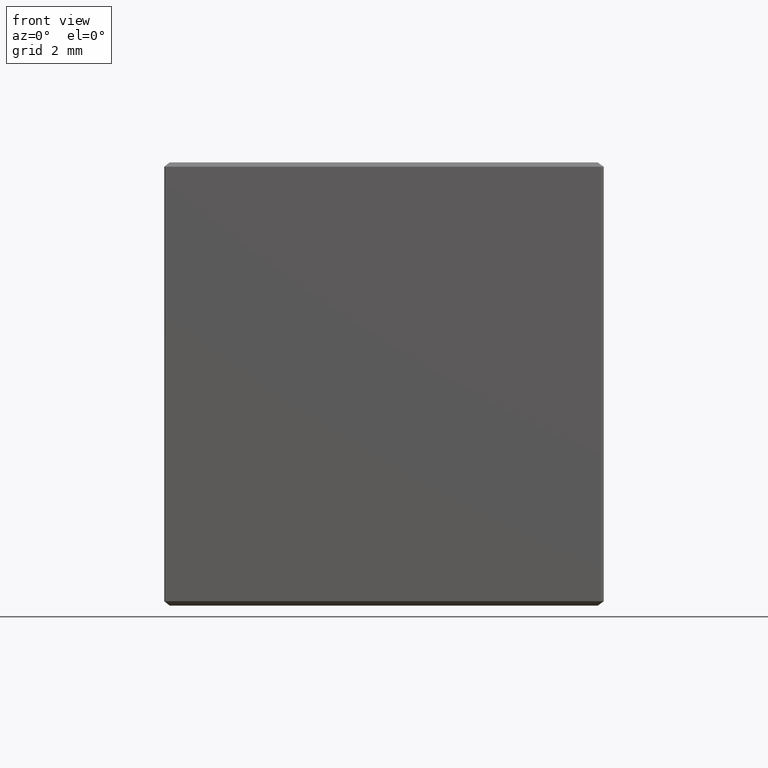
[diagram: clean part render]
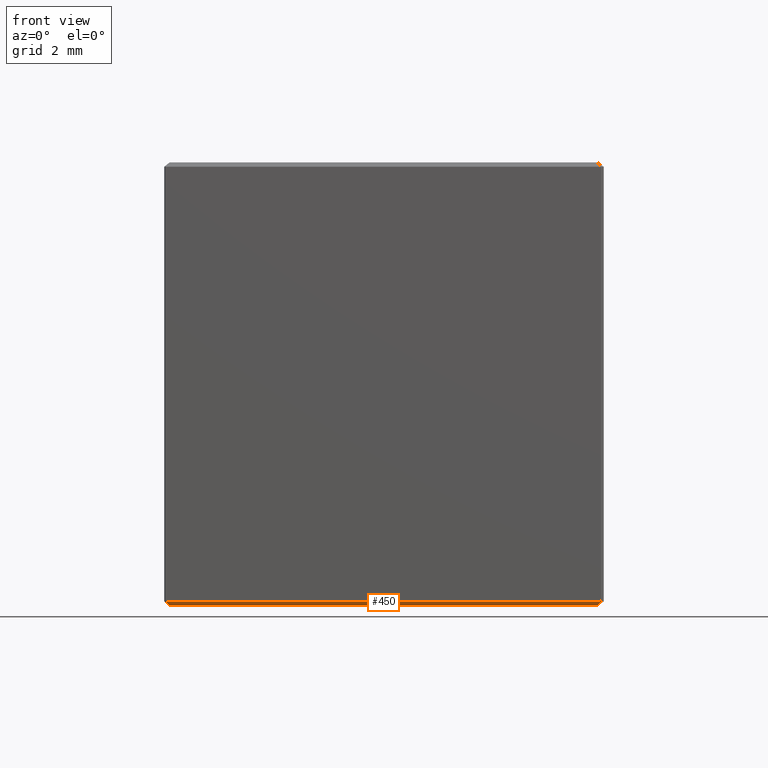
[diagram: same view with one face highlighted and labeled with its STEP entity id]
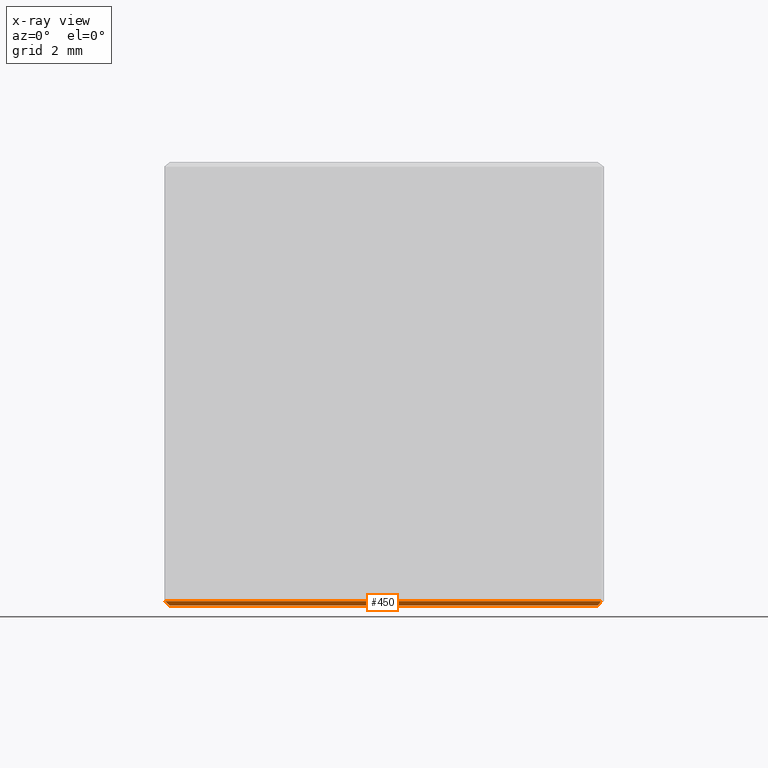
[diagram: x-ray of the same camera — body ghosted, the highlighted face saturated]
A machine part, front view. The second image highlights one B-rep face of the part: STEP entity #450.
The next image is the same camera in x-ray: the body ghosted, the highlighted face saturated — about 0% of this face is hidden behind the body in this view.
In plain terms, the highlighted planar face has unit normal (-0, 0.7071, 0.7071).
Its self-contained STEP definition (entity closure, byte-faithful):
#26 = VECTOR ( 'NONE', #444, 1000.000000000000000 ) ;
#45 = CARTESIAN_POINT ( 'NONE',  ( 0.000000000000000000, -8.560254037844385877, 0.000000000000000000 ) ) ;
#47 = ORIENTED_EDGE ( 'NONE', *, *, #268, .F. ) ;
#64 = DIRECTION ( 'NONE',  ( -0.4597008433809920969, 0.6279630301995566821, -0.6279630301995455799 ) ) ;
#70 = EDGE_CURVE ( 'NONE', #397, #189, #322, .T. ) ;
#75 = ORIENTED_EDGE ( 'NONE', *, *, #70, .F. ) ;
#133 = DIRECTION ( 'NONE',  ( 1.000000000000000000, 0.000000000000000000, 0.000000000000000000 ) ) ;
#154 = ORIENTED_EDGE ( 'NONE', *, *, #359, .F. ) ;
#175 = VECTOR ( 'NONE', #314, 1000.000000000000000 ) ;
#178 = CARTESIAN_POINT ( 'NONE',  ( -5.000000000000000000, -8.660254037844387298, 0.09999999999999939493 ) ) ;
#189 = VERTEX_POINT ( 'NONE', #303 ) ;
#191 = DIRECTION ( 'NONE',  ( -0.5773502691896357231, -0.5773502691896257311, 0.5773502691896158501 ) ) ;
#197 = LINE ( 'NONE', #446, #175 ) ;
#198 = ORIENTED_EDGE ( 'NONE', *, *, #238, .F. ) ;
#215 = DIRECTION ( 'NONE',  ( -0.000000000000000000, 0.7071067811865414665, 0.7071067811865536790 ) ) ;
#217 = PLANE ( 'NONE',  #407 ) ;
#238 = EDGE_CURVE ( 'NONE', #271, #488, #336, .T. ) ;
#268 = EDGE_CURVE ( 'NONE', #488, #397, #197, .T. ) ;
#271 = VERTEX_POINT ( 'NONE', #435 ) ;
#295 = CARTESIAN_POINT ( 'NONE',  ( 4.899999999999998579, -8.660254037844387298, 0.09999999999999939493 ) ) ;
#303 = CARTESIAN_POINT ( 'NONE',  ( 4.826794919243109661, -8.560254037844385877, 0.000000000000000000 ) ) ;
#314 = DIRECTION ( 'NONE',  ( 1.000000000000000000, 0.000000000000000000, 0.000000000000000000 ) ) ;
#322 = LINE ( 'NONE', #401, #377 ) ;
#336 = LINE ( 'NONE', #382, #370 ) ;
#359 = EDGE_CURVE ( 'NONE', #189, #271, #391, .T. ) ;
#370 = VECTOR ( 'NONE', #191, 999.9999999999998863 ) ;
#377 = VECTOR ( 'NONE', #64, 999.9999999999998863 ) ;
#382 = CARTESIAN_POINT ( 'NONE',  ( -4.926794919243112858, -8.660254037844387298, 0.09999999999999939493 ) ) ;
#391 = LINE ( 'NONE', #45, #26 ) ;
#397 = VERTEX_POINT ( 'NONE', #295 ) ;
#401 = CARTESIAN_POINT ( 'NONE',  ( 4.895096189432332601, -8.653555308033608284, 0.09330127018922114435 ) ) ;
#407 = AXIS2_PLACEMENT_3D ( 'NONE', #178, #215, #133 ) ;
#411 = FACE_OUTER_BOUND ( 'NONE', #476, .T. ) ;
#435 = CARTESIAN_POINT ( 'NONE',  ( -4.826794919243110549, -8.560254037844385877, 0.000000000000000000 ) ) ;
#444 = DIRECTION ( 'NONE',  ( -1.000000000000000000, 0.000000000000000000, 0.000000000000000000 ) ) ;
#446 = CARTESIAN_POINT ( 'NONE',  ( -5.000000000000000000, -8.660254037844387298, 0.09999999999999939493 ) ) ;
#450 = ADVANCED_FACE ( 'NONE', ( #411 ), #217, .F. ) ;
#459 = CARTESIAN_POINT ( 'NONE',  ( -4.926794919243112858, -8.660254037844387298, 0.09999999999999939493 ) ) ;
#476 = EDGE_LOOP ( 'NONE', ( #75, #47, #198, #154 ) ) ;
#488 = VERTEX_POINT ( 'NONE', #459 ) ;